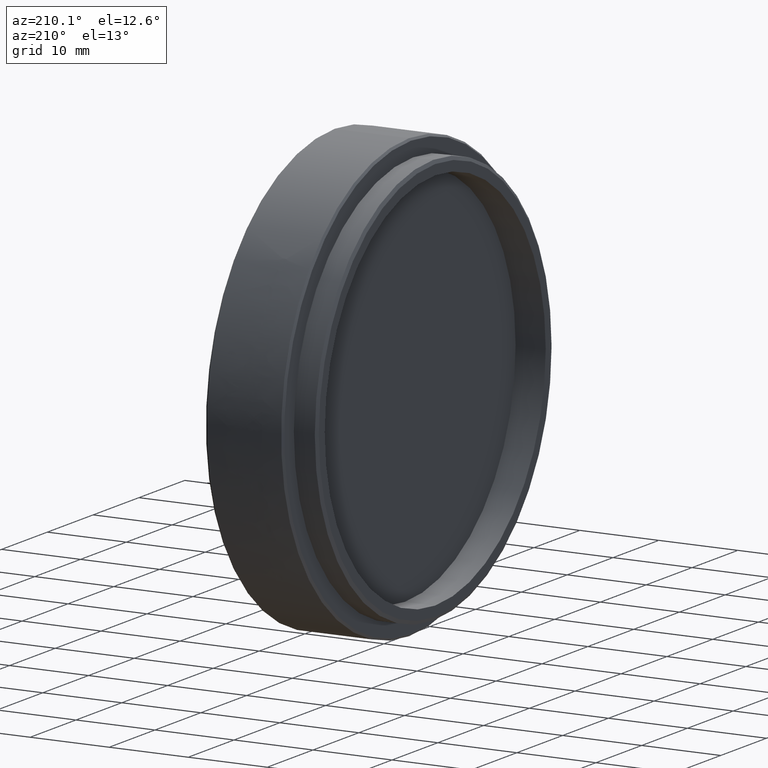
[diagram: clean part render]
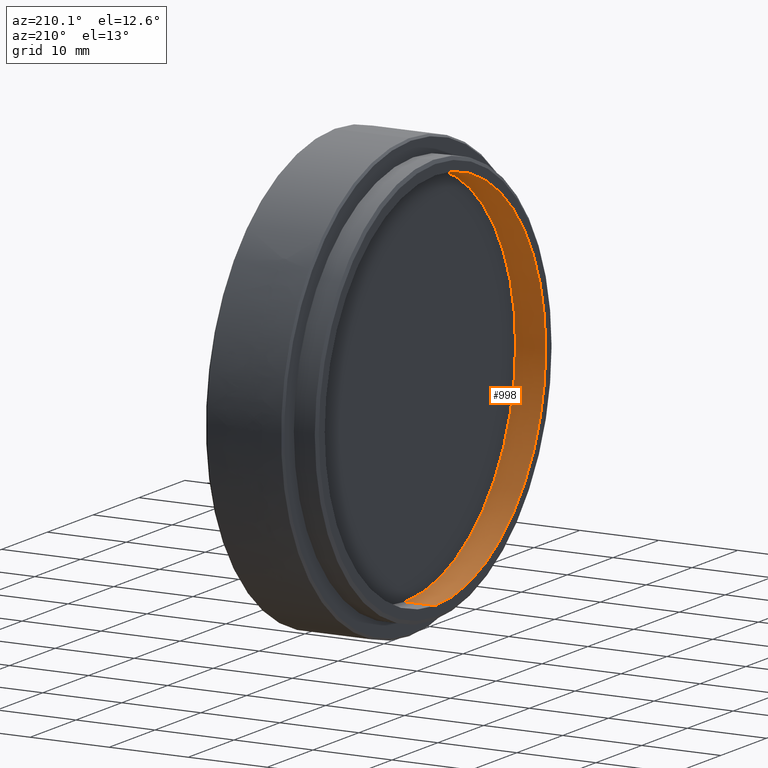
[diagram: same view with one face highlighted and labeled with its STEP entity id]
A machine part, auxiliary view. The second image highlights one B-rep face of the part: STEP entity #998.
In plain terms, the highlighted cylindrical surface (partial cylindrical patch) has radius 24.13 mm, axis along (-1, -0, -0).
Its self-contained STEP definition (entity closure, byte-faithful):
#3 = DIRECTION ( 'NONE',  ( -1.000000000000000000, -0.0000000000000000000, -0.0000000000000000000 ) ) ;
#510 = LINE ( 'NONE', #8156, #7846 ) ;
#542 = AXIS2_PLACEMENT_3D ( 'NONE', #5782, #7955, #8706 ) ;
#601 = VECTOR ( 'NONE', #2277, 1000.000000000000000 ) ;
#728 = CYLINDRICAL_SURFACE ( 'NONE', #542, 24.12999999999999900 ) ;
#971 = EDGE_CURVE ( 'NONE', #6703, #5009, #8774, .T. ) ;
#998 = ADVANCED_FACE ( 'NONE', ( #8553 ), #728, .F. ) ;
#1402 = CARTESIAN_POINT ( 'NONE',  ( -6.477000000000000300, 0.0000000000000000000, 0.0000000000000000000 ) ) ;
#1544 = EDGE_LOOP ( 'NONE', ( #6747, #2225, #5561, #7015 ) ) ;
#1854 = CARTESIAN_POINT ( 'NONE',  ( -2.667000000000000300, 0.0000000000000000000, 24.12999999999999900 ) ) ;
#2225 = ORIENTED_EDGE ( 'NONE', *, *, #2444, .T. ) ;
#2277 = DIRECTION ( 'NONE',  ( -1.000000000000000000, -0.0000000000000000000, -0.0000000000000000000 ) ) ;
#2444 = EDGE_CURVE ( 'NONE', #3224, #6703, #510, .T. ) ;
#2554 = LINE ( 'NONE', #5822, #601 ) ;
#3224 = VERTEX_POINT ( 'NONE', #7105 ) ;
#3740 = EDGE_CURVE ( 'NONE', #5945, #5009, #2554, .T. ) ;
#3774 = DIRECTION ( 'NONE',  ( -1.000000000000000000, -0.0000000000000000000, -0.0000000000000000000 ) ) ;
#4130 = CARTESIAN_POINT ( 'NONE',  ( -6.477000000000000300, 0.0000000000000000000, 24.12999999999999900 ) ) ;
#4141 = EDGE_CURVE ( 'NONE', #3224, #5945, #9082, .T. ) ;
#4364 = DIRECTION ( 'NONE',  ( -1.000000000000000000, -0.0000000000000000000, -0.0000000000000000000 ) ) ;
#5009 = VERTEX_POINT ( 'NONE', #4130 ) ;
#5143 = DIRECTION ( 'NONE',  ( 0.0000000000000000000, 0.0000000000000000000, 1.000000000000000000 ) ) ;
#5378 = CARTESIAN_POINT ( 'NONE',  ( -6.477000000000000300, 2.955072726342562800E-015, -24.12999999999999900 ) ) ;
#5561 = ORIENTED_EDGE ( 'NONE', *, *, #971, .T. ) ;
#5782 = CARTESIAN_POINT ( 'NONE',  ( -6.477000000000000300, 0.0000000000000000000, 0.0000000000000000000 ) ) ;
#5822 = CARTESIAN_POINT ( 'NONE',  ( -6.477000000000000300, 0.0000000000000000000, 24.12999999999999900 ) ) ;
#5945 = VERTEX_POINT ( 'NONE', #1854 ) ;
#6703 = VERTEX_POINT ( 'NONE', #5378 ) ;
#6747 = ORIENTED_EDGE ( 'NONE', *, *, #4141, .F. ) ;
#7015 = ORIENTED_EDGE ( 'NONE', *, *, #3740, .F. ) ;
#7105 = CARTESIAN_POINT ( 'NONE',  ( -2.667000000000000300, 2.955072726342562800E-015, -24.12999999999999900 ) ) ;
#7846 = VECTOR ( 'NONE', #3774, 1000.000000000000000 ) ;
#7955 = DIRECTION ( 'NONE',  ( -1.000000000000000000, -0.0000000000000000000, -0.0000000000000000000 ) ) ;
#8156 = CARTESIAN_POINT ( 'NONE',  ( -6.477000000000000300, 2.955072726342562800E-015, -24.12999999999999900 ) ) ;
#8385 = AXIS2_PLACEMENT_3D ( 'NONE', #8754, #4364, #9481 ) ;
#8553 = FACE_OUTER_BOUND ( 'NONE', #1544, .T. ) ;
#8590 = AXIS2_PLACEMENT_3D ( 'NONE', #1402, #3, #5143 ) ;
#8706 = DIRECTION ( 'NONE',  ( 0.0000000000000000000, 0.0000000000000000000, 1.000000000000000000 ) ) ;
#8754 = CARTESIAN_POINT ( 'NONE',  ( -2.667000000000000300, 0.0000000000000000000, 0.0000000000000000000 ) ) ;
#8774 = CIRCLE ( 'NONE', #8590, 24.12999999999999900 ) ;
#9082 = CIRCLE ( 'NONE', #8385, 24.12999999999999900 ) ;
#9481 = DIRECTION ( 'NONE',  ( 0.0000000000000000000, 0.0000000000000000000, 1.000000000000000000 ) ) ;